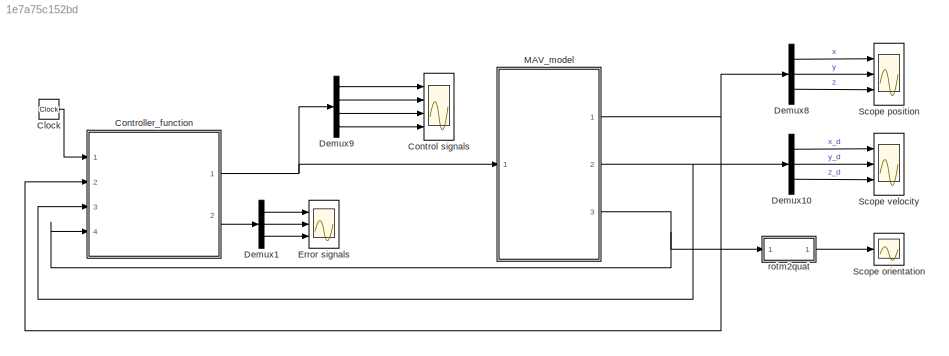
MODEL slx_1e7a75c152bd
KIND model
CONFIG AbsTol = auto
CONFIG FixedStep = dt_sim
CONFIG InitFcn = %cd <userpath>/ROS_projects/vecfield_ws/src/vecfield_lib/simulink/quadrotor\nMAV_constants
CONFIG MaxStep = auto
CONFIG MinStep = auto
CONFIG RelTol = 1e-3
CONFIG SampleTimeConstraint = Unconstrained
CONFIG Solver = FixedStepAuto
CONFIG SolverMode = Auto
CONFIG SolverName = FixedStepAuto
CONFIG StartTime = 0.0
CONFIG StopFcn = animation
CONFIG StopTime = T_sim
BLOCK [Clock] Clock
  Decimation = 1
BLOCK [Scope] Control signals
  NumInputPorts = 4
  Ports = [4]
  ScopeSpecificationString = Simulink.scopes.TimeScopeBlockCfg('CurrentConfiguration', extmgr.ConfigurationSet(extmgr.Configuration('Core','General UI',true),extmgr.Configuration('Core','Source UI',true),extmgr.Configuration('Sources','WiredSimulink',true,'DataLoggingVariableName','control_signals','DataLogging',true,'DataLoggingSaveFormat','StructureWithTime'),extmgr.Configuration('Visuals','Time Domain',true,'SerializedDisp...<+3457ch>
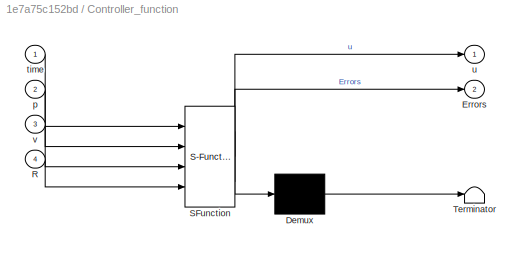
BLOCK [SubSystem] Controller_function
  ErrorFcn = Stateflow.Translate.translate
  PermitHierarchicalResolution = ExplicitOnly
  Ports = [4, 2]
  RequestExecContextInheritance = off
  SFBlockType = MATLAB Function
  TreatAsAtomicUnit = on
  Variant = off
BLOCK [Demux] Controller_function/ Demux 
  Outputs = 1
  Ports = [1, 1]
BLOCK [S-Function] Controller_function/ SFunction 
  EnableBusSupport = on
  FunctionName = sf_sfun
  Parameters = Kf,Kr,Kv,curva,drag_coef,g,m,vr
  PortCounts = [4 3]
  Ports = [4, 3]
  SFunctionDeploymentMode = off
  Tag = Stateflow S-Function Controller_v1 8
BLOCK [Terminator] Controller_function/ Terminator 
BLOCK [Outport] Controller_function/Errors
  IconDisplay = Port number
  Port = 2
BLOCK [Inport] Controller_function/R
  IconDisplay = Port number
  Port = 4
BLOCK [Inport] Controller_function/p
  IconDisplay = Port number
  Port = 2
BLOCK [Inport] Controller_function/time
  IconDisplay = Port number
BLOCK [Outport] Controller_function/u
  IconDisplay = Port number
BLOCK [Inport] Controller_function/v
  IconDisplay = Port number
  Port = 3
BLOCK [Demux] Demux1
  DisplayOption = bar
  Outputs = 3
  Ports = [1, 3]
BLOCK [Demux] Demux10
  DisplayOption = bar
  Outputs = 3
  Ports = [1, 3]
BLOCK [Demux] Demux8
  DisplayOption = bar
  Outputs = 3
  Ports = [1, 3]
BLOCK [Demux] Demux9
  DisplayOption = bar
  Ports = [1, 4]
BLOCK [Scope] Error signals
  NumInputPorts = 3
  Ports = [3]
  ScopeSpecificationString = Simulink.scopes.TimeScopeBlockCfg('CurrentConfiguration', extmgr.ConfigurationSet(extmgr.Configuration('Core','General UI',true),extmgr.Configuration('Core','Source UI',true),extmgr.Configuration('Sources','WiredSimulink',true,'DataLoggingVariableName','Errors','DataLogging',true,'DataLoggingSaveFormat','StructureWithTime'),extmgr.Configuration('Visuals','Time Domain',true,'SerializedDisplays',{st...<+2758ch>
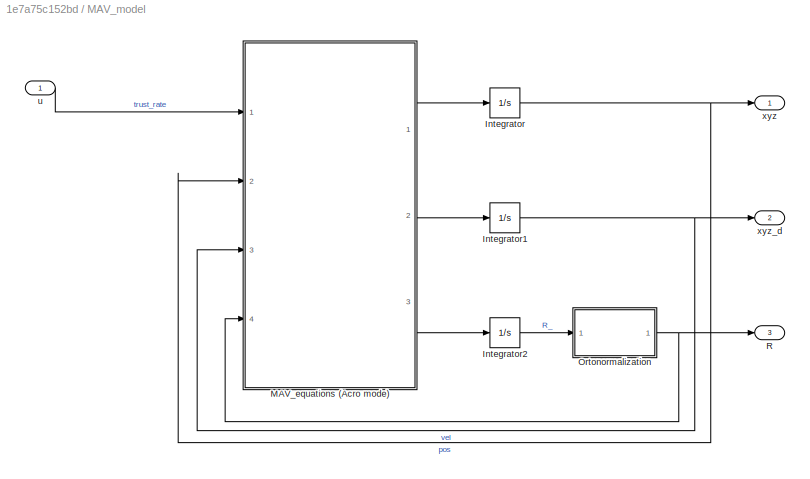
BLOCK [SubSystem] MAV_model
  Ports = [1, 3]
  RequestExecContextInheritance = off
  Variant = off
BLOCK [Integrator] MAV_model/Integrator
  InitialCondition = xyz_0
  Ports = [1, 1]
BLOCK [Integrator] MAV_model/Integrator1
  InitialCondition = xyz_d_0
  Ports = [1, 1]
BLOCK [Integrator] MAV_model/Integrator2
  InitialCondition = Rot_0
  Ports = [1, 1]
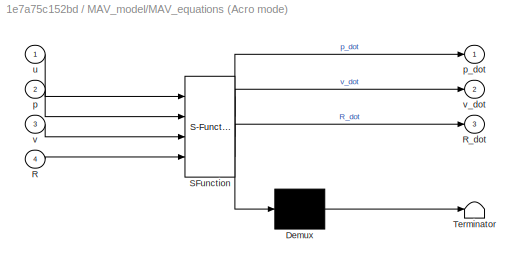
BLOCK [SubSystem] MAV_model/MAV_equations (Acro mode)
  ErrorFcn = Stateflow.Translate.translate
  PermitHierarchicalResolution = ExplicitOnly
  Ports = [4, 3]
  RequestExecContextInheritance = off
  SFBlockType = MATLAB Function
  TreatAsAtomicUnit = on
  Variant = off
BLOCK [Demux] MAV_model/MAV_equations (Acro mode)/ Demux 
  Outputs = 1
  Ports = [1, 1]
BLOCK [S-Function] MAV_model/MAV_equations (Acro mode)/ SFunction 
  EnableBusSupport = on
  FunctionName = sf_sfun
  Parameters = Delta_omega,Delta_tau,drag_coef,g,m
  PortCounts = [4 4]
  Ports = [4, 4]
  SFunctionDeploymentMode = off
  Tag = Stateflow S-Function Controller_v1 1
BLOCK [Terminator] MAV_model/MAV_equations (Acro mode)/ Terminator 
BLOCK [Inport] MAV_model/MAV_equations (Acro mode)/R
  IconDisplay = Port number
  Port = 4
BLOCK [Outport] MAV_model/MAV_equations (Acro mode)/R_dot
  IconDisplay = Port number
  Port = 3
BLOCK [Inport] MAV_model/MAV_equations (Acro mode)/p
  IconDisplay = Port number
  Port = 2
BLOCK [Outport] MAV_model/MAV_equations (Acro mode)/p_dot
  IconDisplay = Port number
BLOCK [Inport] MAV_model/MAV_equations (Acro mode)/u
  IconDisplay = Port number
BLOCK [Inport] MAV_model/MAV_equations (Acro mode)/v
  IconDisplay = Port number
  Port = 3
BLOCK [Outport] MAV_model/MAV_equations (Acro mode)/v_dot
  IconDisplay = Port number
  Port = 2
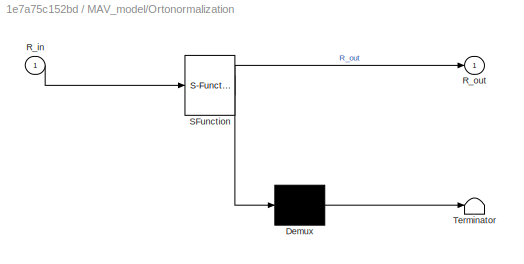
BLOCK [SubSystem] MAV_model/Ortonormalization
  ErrorFcn = Stateflow.Translate.translate
  PermitHierarchicalResolution = ExplicitOnly
  Ports = [1, 1]
  RequestExecContextInheritance = off
  SFBlockType = MATLAB Function
  TreatAsAtomicUnit = on
  Variant = off
BLOCK [Demux] MAV_model/Ortonormalization/ Demux 
  Outputs = 1
  Ports = [1, 1]
BLOCK [S-Function] MAV_model/Ortonormalization/ SFunction 
  EnableBusSupport = on
  FunctionName = sf_sfun
  PortCounts = [1 2]
  Ports = [1, 2]
  SFunctionDeploymentMode = off
  Tag = Stateflow S-Function Controller_v1 5
BLOCK [Terminator] MAV_model/Ortonormalization/ Terminator 
BLOCK [Inport] MAV_model/Ortonormalization/R_in
  IconDisplay = Port number
BLOCK [Outport] MAV_model/Ortonormalization/R_out
  IconDisplay = Port number
BLOCK [Outport] MAV_model/R
  IconDisplay = Port number
  Port = 3
BLOCK [Inport] MAV_model/u
  IconDisplay = Port number
BLOCK [Outport] MAV_model/xyz
  IconDisplay = Port number
BLOCK [Outport] MAV_model/xyz_d
  IconDisplay = Port number
  Port = 2
BLOCK [Scope] Scope orientation
  Ports = [1]
  ScopeSpecificationString = Simulink.scopes.TimeScopeBlockCfg('CurrentConfiguration', extmgr.ConfigurationSet(extmgr.Configuration('Core','General UI',true),extmgr.Configuration('Core','Source UI',true),extmgr.Configuration('Sources','WiredSimulink',true,'DataLoggingVariableName','q_ori_t','DataLoggingSaveFormat','StructureWithTime','DataLogging',true),extmgr.Configuration('Visuals','Time Domain',true,'SerializedDisplays',{s...<+1573ch>
BLOCK [Scope] Scope position
  NumInputPorts = 3
  Ports = [3]
  ScopeSpecificationString = Simulink.scopes.TimeScopeBlockCfg('CurrentConfiguration', extmgr.ConfigurationSet(extmgr.Configuration('Core','General UI',true),extmgr.Configuration('Core','Source UI',true),extmgr.Configuration('Sources','WiredSimulink',true,'DataLoggingVariableName','pos_t','DataLoggingSaveFormat','StructureWithTime','DataLogging',true),extmgr.Configuration('Visuals','Time Domain',true,'SerializedDisplays',{str...<+2759ch>
BLOCK [Scope] Scope velocity
  NumInputPorts = 3
  Ports = [3]
  ScopeSpecificationString = Simulink.scopes.TimeScopeBlockCfg('CurrentConfiguration', extmgr.ConfigurationSet(extmgr.Configuration('Core','General UI',true),extmgr.Configuration('Core','Source UI',true),extmgr.Configuration('Sources','WiredSimulink',true,'DataLoggingVariableName','vel_t','DataLoggingSaveFormat','StructureWithTime','DataLogging',true),extmgr.Configuration('Visuals','Time Domain',true,'SerializedDisplays',{str...<+2718ch>
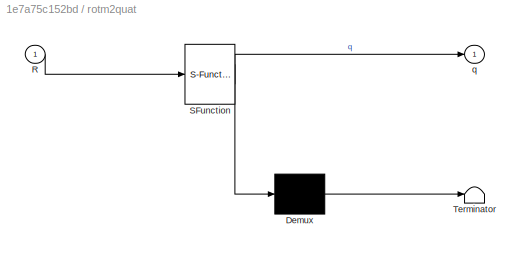
BLOCK [SubSystem] rotm2quat
  ErrorFcn = Stateflow.Translate.translate
  PermitHierarchicalResolution = ExplicitOnly
  Ports = [1, 1]
  RequestExecContextInheritance = off
  SFBlockType = MATLAB Function
  TreatAsAtomicUnit = on
  Variant = off
BLOCK [Demux] rotm2quat/ Demux 
  Outputs = 1
  Ports = [1, 1]
BLOCK [S-Function] rotm2quat/ SFunction 
  EnableBusSupport = on
  FunctionName = sf_sfun
  PortCounts = [1 2]
  Ports = [1, 2]
  SFunctionDeploymentMode = off
  Tag = Stateflow S-Function Controller_v1 2
BLOCK [Terminator] rotm2quat/ Terminator 
BLOCK [Inport] rotm2quat/R
  IconDisplay = Port number
BLOCK [Outport] rotm2quat/q
  IconDisplay = Port number
LINE Clock:1 -> Controller_function:1
NET Controller_function:1 -> Demux9:1, MAV_model:1
LINE Controller_function:2 -> Demux1:1
LINE Demux10:1 -> Scope velocity:1
LINE Demux10:2 -> Scope velocity:2
LINE Demux10:3 -> Scope velocity:3
LINE Demux1:1 -> Error signals:1
LINE Demux1:2 -> Error signals:2
LINE Demux1:3 -> Error signals:3
LINE Demux8:1 -> Scope position:1
LINE Demux8:2 -> Scope position:2
LINE Demux8:3 -> Scope position:3
LINE Demux9:1 -> Control signals:1
LINE Demux9:2 -> Control signals:2
LINE Demux9:3 -> Control signals:3
LINE Demux9:4 -> Control signals:4
NET MAV_model/Integrator1:1 -> MAV_model/MAV_equations (Acro mode):3, MAV_model/xyz_d:1
LINE MAV_model/Integrator2:1 -> MAV_model/Ortonormalization:1
NET MAV_model/Integrator:1 -> MAV_model/MAV_equations (Acro mode):2, MAV_model/xyz:1
LINE MAV_model/MAV_equations (Acro mode):1 -> MAV_model/Integrator:1
LINE MAV_model/MAV_equations (Acro mode):2 -> MAV_model/Integrator1:1
LINE MAV_model/MAV_equations (Acro mode):3 -> MAV_model/Integrator2:1
NET MAV_model/Ortonormalization:1 -> MAV_model/MAV_equations (Acro mode):4, MAV_model/R:1
LINE MAV_model/u:1 -> MAV_model/MAV_equations (Acro mode):1
NET MAV_model:1 -> Controller_function:2, Demux8:1
NET MAV_model:2 -> Controller_function:3, Demux10:1
NET MAV_model:3 -> Controller_function:4, rotm2quat:1
LINE rotm2quat:1 -> Scope orientation:1
note: NET lines group one-source signal fan-out (src -> all destinations, sorted); 1:1 wires keep LINE
CHART MAV_model/MAV_equations (Acro mode) states=1 transitions=1
  STATE_LABEL 'eML_blk_kernel()'
  STATE_LABEL 'SCRIPT:\nfunction [p_dot, v_dot, R_dot] = MAV_equations(u,p,v,R, g, m, drag_coef,Delta_tau, Delta_omega)\n\n%Thrust\ntau = u(1);\n%Angular velocity\nomega = u(2:4); omega = omega(:);\n\n% tau = tau + Delta_tau;\ntau = tau + Delta_tau*randn(1);\nomega = omega + Delta_omega*randn(3,1);\n\n%Skew-symmetric matrix\nS_omega = [   0      -omega(3)  omega(2) ;\n           omega(3)      0      -omega(1);\n           -ome...<+191ch>'
CHART rotm2quat states=1 transitions=1
  STATE_LABEL 'eML_blk_kernel()'
  STATE_LABEL "SCRIPT:\nfunction q = fcn(R)\n\nq = rotm2quat(R)';\n"
CHART MAV_model/Ortonormalization states=1 transitions=1
  STATE_LABEL 'eML_blk_kernel()'
  STATE_LABEL "SCRIPT:\nfunction R_out = fcn(R_in)\n\nv1 = R_in(:,1);\nv2 = R_in(:,2);\nv3 = R_in(:,3);\n\nv1 = v1/norm(v1);\nv2 = v2 - v1'*v2*v1; v2 = v2/norm(v2);\nv3 = cross(v1,v2); v3 = v3/norm(v3);\n\nR_out = [v1,v2,v3];\n\n"
CHART Controller_function states=1 transitions=1
  STATE_LABEL 'eML_blk_kernel()'
  STATE_LABEL 'SCRIPT:\nfunction [u, Errors]  = Controller_function(time, p, v, R, vr, m, g, Kv, Kr, drag_coef, Kf, curva)\n \n\nz_b = R(:,3);\nz_hat = [0;0;1];\n\n%Vector field\n[F, D] = compute_dist_field(p, time, vr, Kf, curva);\n\npsi_r = 0;\n% psi_r = atan2(0-p(2),0-p(1));\n% psi_r = atan2(F(2),F(1));\n\n%Jacobian of the vector field\n[J, Jt] = my_Jacobian(p, time, vr, Kf, curva);\n\n%Drag compensation\nf_drag = -drag_coef*v...<+2298ch>'
